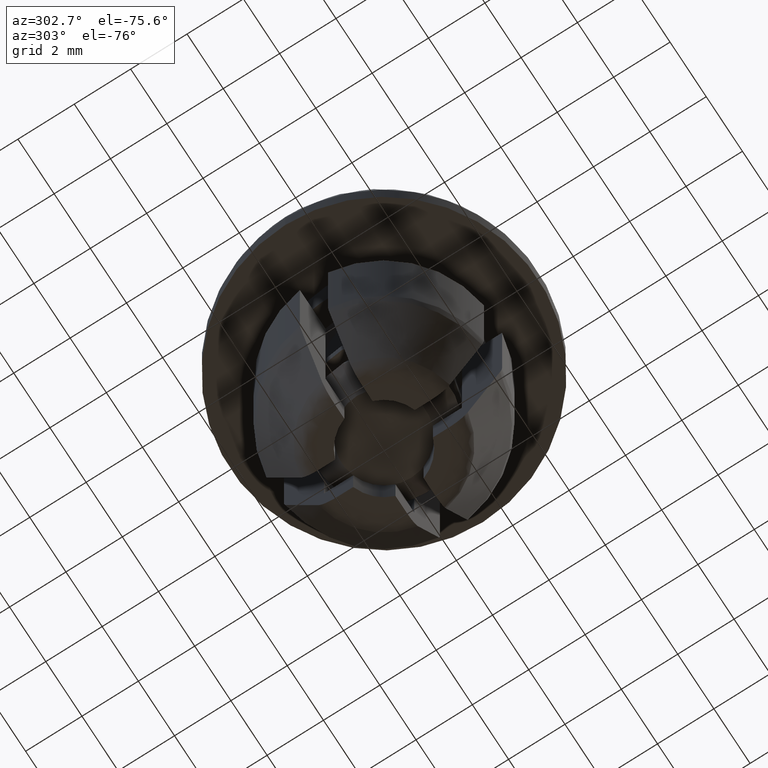
[diagram: clean part render]
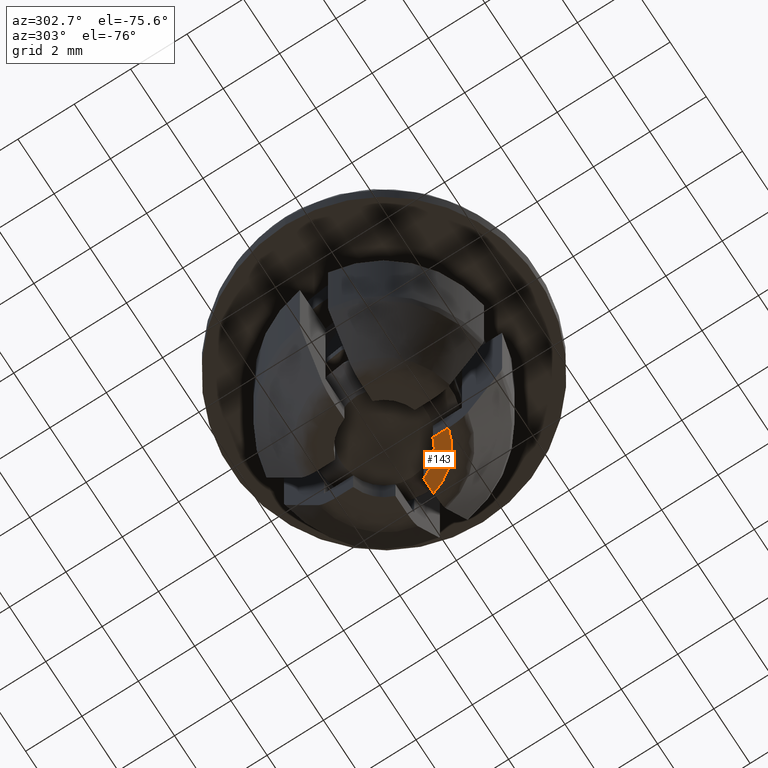
[diagram: same view with one face highlighted and labeled with its STEP entity id]
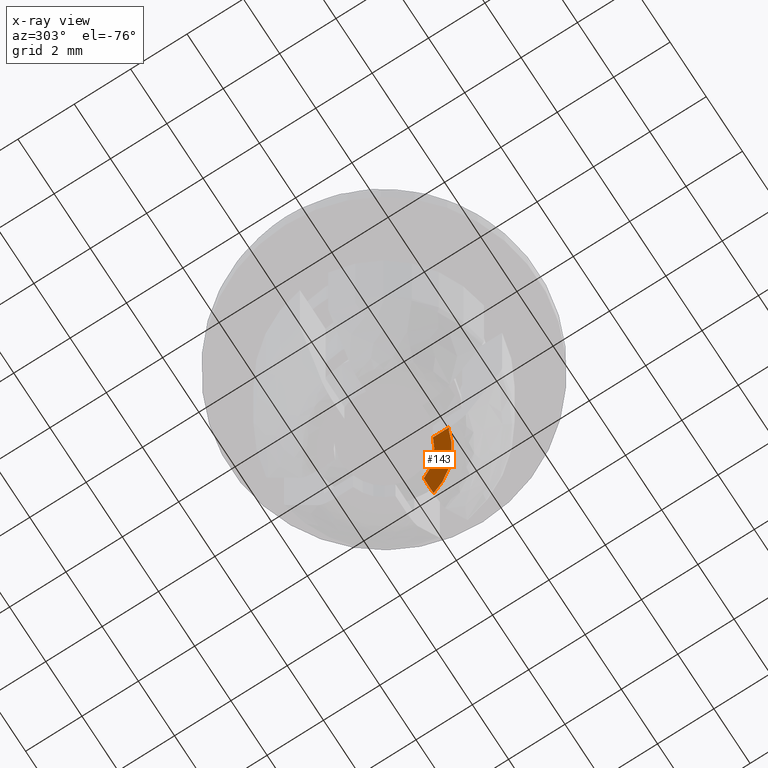
[diagram: x-ray of the same camera — body ghosted, the highlighted face saturated]
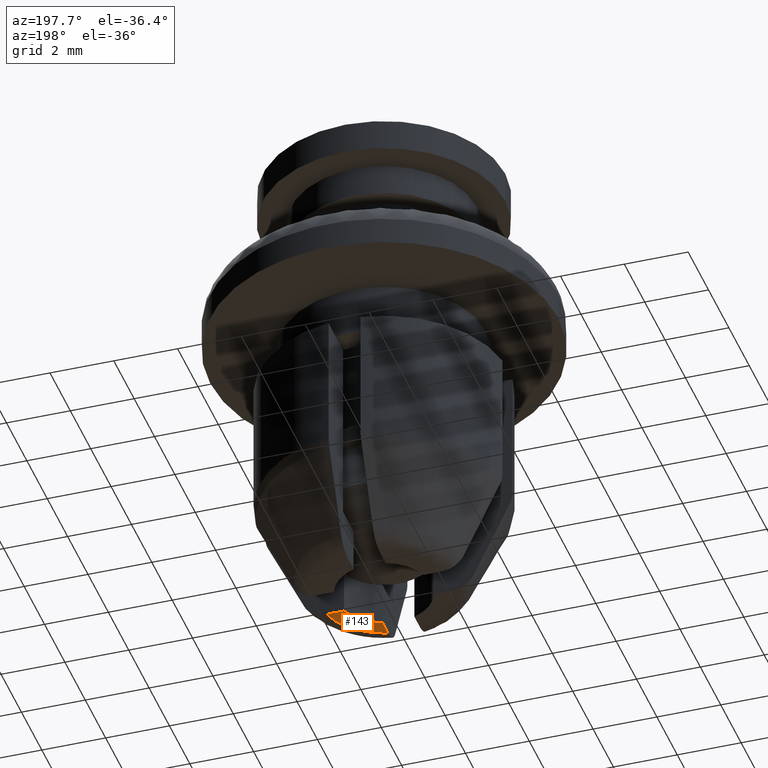
[diagram: same view with one face highlighted and labeled with its STEP entity id]
A machine part, auxiliary view. The second image highlights one B-rep face of the part: STEP entity #143.
The next image is the same camera in x-ray: the body ghosted, the highlighted face saturated — about 0% of this face is hidden behind the body in this view.
A second angle (auxiliary view) of the same face is appended — the face is thin or edge-on in the first view.
In plain terms, the highlighted planar face has unit normal (0, 0, -1).
Its self-contained STEP definition (entity closure, byte-faithful):
#143=ADVANCED_FACE('',(#504),#503,.T.);
#503=PLANE('',#1163);
#504=FACE_OUTER_BOUND('',#1164,.T.);
#1160=CARTESIAN_POINT('',(2.10546438709E+00,-2.10546438709E+00,-1.10003000000E+01));
#1161=DIRECTION('',(0.00000000000E+00,0.00000000000E+00,-1.00000000000E+00));
#1162=DIRECTION('',(-1.00000000000E+00,0.00000000000E+00,0.00000000000E+00));
#1163=AXIS2_PLACEMENT_3D('',#1160,#1161,#1162);
#1164=EDGE_LOOP('',(#1708,#1709,#1710,#1711));
#1708=ORIENTED_EDGE('',*,*,#1993,.F.);
#1709=ORIENTED_EDGE('',*,*,#2055,.F.);
#1710=ORIENTED_EDGE('',*,*,#2056,.T.);
#1711=ORIENTED_EDGE('',*,*,#1984,.F.);
#1984=EDGE_CURVE('',#2447,#2454,#2455,.T.);
#1993=EDGE_CURVE('',#2509,#2447,#2516,.T.);
#2055=EDGE_CURVE('',#2921,#2509,#2922,.T.);
#2056=EDGE_CURVE('',#2921,#2454,#2928,.T.);
#2447=VERTEX_POINT('',#3632);
#2454=VERTEX_POINT('',#3636);
#2455=LINE('',#3637,#3638);
#2509=VERTEX_POINT('',#3675);
#2516=CIRCLE('',#3682,1.50000000000E+00);
#2921=VERTEX_POINT('',#3946);
#2922=LINE('',#3947,#3948);
#2928=CIRCLE('',#3953,2.02230000000E+00);
#3632=CARTESIAN_POINT('',(5.00000000000E-01,-1.41421356237E+00,-1.10003000000E+01));
#3636=CARTESIAN_POINT('',(5.00004366197E-01,-1.95950752863E+00,-1.10003000000E+01));
#3637=CARTESIAN_POINT('',(5.00000000000E-01,-1.41421356237E+00,-1.10003000000E+01));
#3638=VECTOR('',#3639,5.45293966259E-01);
#3639=DIRECTION('',(0.00000000000E+00,-1.00000000000E+00,0.00000000000E+00));
#3675=CARTESIAN_POINT('',(1.41421356237E+00,-5.00000000000E-01,-1.10003000000E+01));
#3679=CARTESIAN_POINT('',(0.00000000000E+00,0.00000000000E+00,-1.10003000000E+01));
#3680=DIRECTION('',(0.00000000000E+00,0.00000000000E+00,-1.00000000000E+00));
#3681=DIRECTION('',(-1.00000000000E+00,-0.00000000000E+00,-0.00000000000E+00));
#3682=AXIS2_PLACEMENT_3D('',#3679,#3680,#3681);
#3946=CARTESIAN_POINT('',(1.95950752863E+00,-5.00004366201E-01,-1.10003000000E+01));
#3947=CARTESIAN_POINT('',(1.95950752863E+00,-5.00000000000E-01,-1.10003000000E+01));
#3948=VECTOR('',#3949,5.45293966253E-01);
#3949=DIRECTION('',(-1.00000000000E+00,0.00000000000E+00,0.00000000000E+00));
#3950=CARTESIAN_POINT('',(0.00000000000E+00,0.00000000000E+00,-1.10003000000E+01));
#3951=DIRECTION('',(0.00000000000E+00,0.00000000000E+00,-1.00000000000E+00));
#3952=DIRECTION('',(1.00000000000E+00,-0.00000000000E+00,-0.00000000000E+00));
#3953=AXIS2_PLACEMENT_3D('',#3950,#3951,#3952);